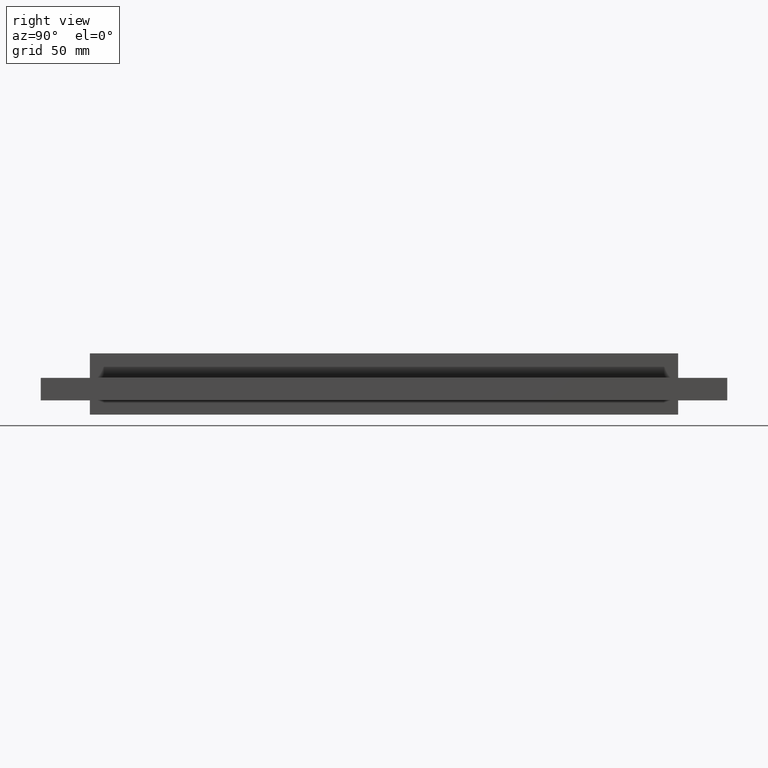
[diagram: clean part render]
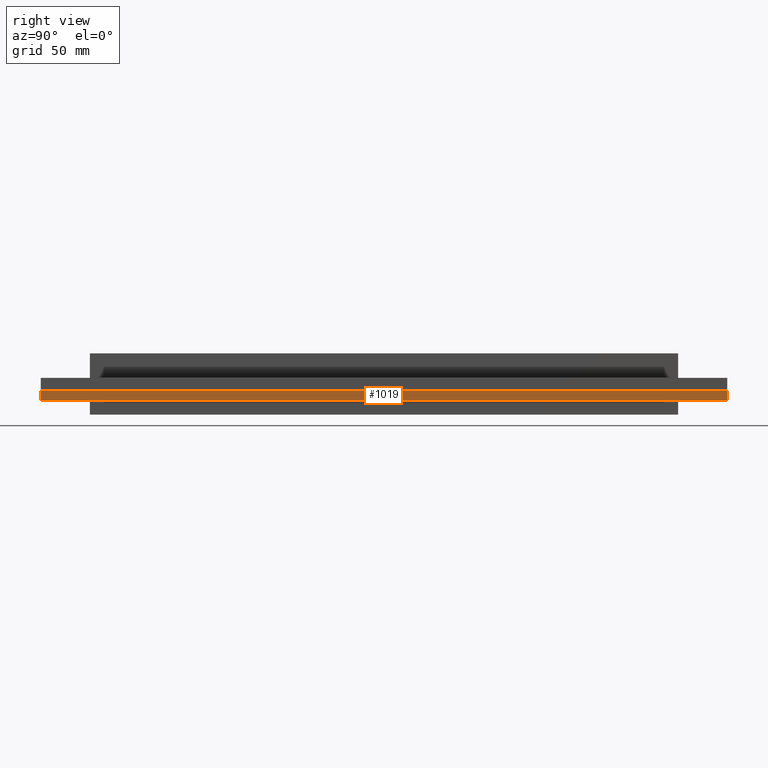
[diagram: same view with one face highlighted and labeled with its STEP entity id]
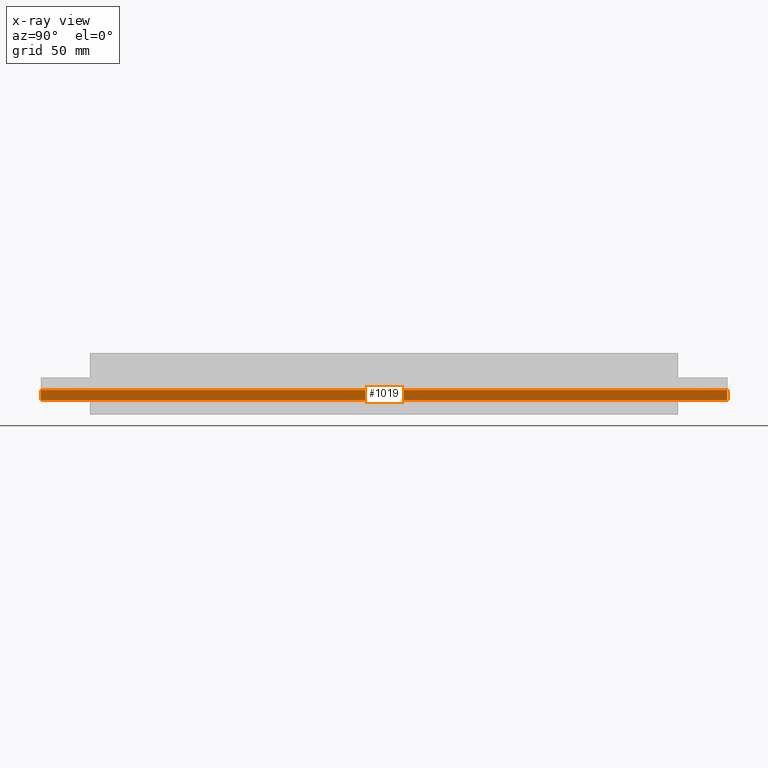
[diagram: x-ray of the same camera — body ghosted, the highlighted face saturated]
A machine part, right view. The second image highlights one B-rep face of the part: STEP entity #1019.
The next image is the same camera in x-ray: the body ghosted, the highlighted face saturated — about 0% of this face is hidden behind the body in this view.
In plain terms, the highlighted planar face has unit normal (1, -0, 0).
Its self-contained STEP definition (entity closure, byte-faithful):
#103=PLANE('',#1130);
#153=FACE_OUTER_BOUND('',#223,.T.);
#223=EDGE_LOOP('',(#905,#906,#907,#908));
#331=LINE('',#1667,#423);
#332=LINE('',#1670,#424);
#333=LINE('',#1672,#425);
#334=LINE('',#1673,#426);
#423=VECTOR('',#1394,10.);
#424=VECTOR('',#1397,10.);
#425=VECTOR('',#1398,10.);
#426=VECTOR('',#1399,10.);
#553=VERTEX_POINT('',#1663);
#554=VERTEX_POINT('',#1665);
#555=VERTEX_POINT('',#1669);
#556=VERTEX_POINT('',#1671);
#683=EDGE_CURVE('',#553,#554,#331,.T.);
#684=EDGE_CURVE('',#555,#553,#332,.T.);
#685=EDGE_CURVE('',#556,#554,#333,.T.);
#686=EDGE_CURVE('',#555,#556,#334,.T.);
#905=ORIENTED_EDGE('',*,*,#684,.T.);
#906=ORIENTED_EDGE('',*,*,#683,.T.);
#907=ORIENTED_EDGE('',*,*,#685,.F.);
#908=ORIENTED_EDGE('',*,*,#686,.F.);
#1019=ADVANCED_FACE('',(#153),#103,.T.);
#1130=AXIS2_PLACEMENT_3D('',#1668,#1395,#1396);
#1394=DIRECTION('',(0.,0.,-1.));
#1395=DIRECTION('center_axis',(1.,-3.17206578464332E-17,0.));
#1396=DIRECTION('ref_axis',(-3.17206578464332E-17,-1.,1.38777878078145E-16));
#1397=DIRECTION('',(-3.17206578464332E-17,-1.,1.38777878078145E-16));
#1398=DIRECTION('',(-3.17206578464332E-17,-1.,1.38777878078145E-16));
#1399=DIRECTION('',(0.,0.,-1.));
#1663=CARTESIAN_POINT('',(60.,-168.,-3.));
#1665=CARTESIAN_POINT('',(60.,-168.,-8.));
#1667=CARTESIAN_POINT('',(60.,-168.,-3.));
#1668=CARTESIAN_POINT('Origin',(60.,168.,-3.00000000000004));
#1669=CARTESIAN_POINT('',(60.,168.,-3.00000000000004));
#1670=CARTESIAN_POINT('',(60.,168.,-3.00000000000004));
#1671=CARTESIAN_POINT('',(60.,168.,-8.00000000000004));
#1672=CARTESIAN_POINT('',(60.,168.,-8.00000000000004));
#1673=CARTESIAN_POINT('',(60.,168.,-3.00000000000004));